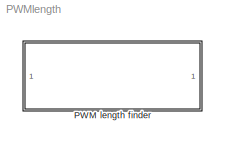
MODEL PWMlength
KIND model
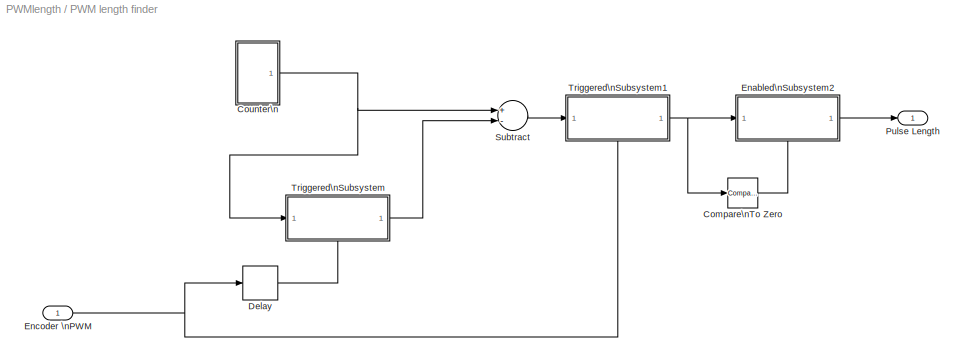
BLOCK [SubSystem] PWM length finder
  Ports = [1, 1]
  RequestExecContextInheritance = off
  SID = 16
  Variant = off
BLOCK [Reference] PWM length finder/Compare\nTo Zero  REF=simulink/Logic and Bit\nOperations/Compare\nTo Zero
  OutDataTypeStr = boolean
  Ports = [1, 1]
  SID = 42
  SourceBlock = simulink/Logic and Bit\nOperations/Compare\nTo Zero
  SourceType = Compare To Zero
  ZeroCross = on
  relop = ~=
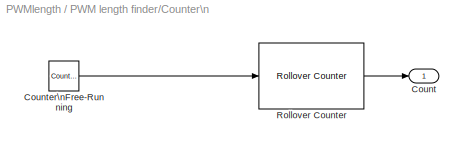
BLOCK [SubSystem] PWM length finder/Counter\n
  Ports = [0, 1]
  RequestExecContextInheritance = off
  SID = 19
  Variant = off
BLOCK [Outport] PWM length finder/Counter\n/Count
  IconDisplay = Port number
  SID = 20
BLOCK [Reference] PWM length finder/Counter\n/Counter\nFree-Running  REF=simulink/Sources/Counter\nFree-Running
  NumBits = 16
  Ports = [0, 1]
  SID = 5
  SourceBlock = simulink/Sources/Counter\nFree-Running
  SourceType = Counter Free-Running
  tsamp = 0.001
BLOCK [Reference] PWM length finder/Counter\n/Rollover Counter   REF=slrtlib/Incremental\nEncoder/Utilities/Rollover/Rollover Counter 
  InitialValue = 0
  Ports = [1, 1]
  RolloverThreshold = 2^15
  SID = 8
  SourceBlock = slrtlib/Incremental\nEncoder/Utilities/Rollover/Rollover Counter
  SourceType = RolloverCounter
BLOCK [Delay] PWM length finder/Delay
  DelayLength = 1
  InitialCondition = 0
  InputPortMap = u0
  Ports = [1, 1]
  SID = 38
  SampleTime = 0.00001
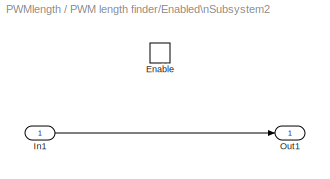
BLOCK [SubSystem] PWM length finder/Enabled\nSubsystem2
  Ports = [1, 1, 1]
  RequestExecContextInheritance = off
  SID = 43
  TreatAsAtomicUnit = on
  Variant = off
BLOCK [EnablePort] PWM length finder/Enabled\nSubsystem2/Enable
  Ports = []
  SID = 45
BLOCK [Inport] PWM length finder/Enabled\nSubsystem2/In1
  IconDisplay = Port number
  SID = 44
BLOCK [Outport] PWM length finder/Enabled\nSubsystem2/Out1
  IconDisplay = Port number
  SID = 46
BLOCK [Inport] PWM length finder/Encoder \nPWM
  IconDisplay = Port number
  SID = 66
BLOCK [Outport] PWM length finder/Pulse Length
  IconDisplay = Port number
  SID = 17
BLOCK [Sum] PWM length finder/Subtract
  InputSameDT = off
  Inputs = +-
  OutDataTypeStr = Inherit: Inherit via internal rule
  Ports = [2, 1]
  SID = 10
  SaturateOnIntegerOverflow = off
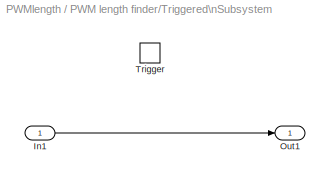
BLOCK [SubSystem] PWM length finder/Triggered\nSubsystem
  Ports = [1, 1, 0, 1]
  RequestExecContextInheritance = off
  SID = 53
  TreatAsAtomicUnit = on
  Variant = off
BLOCK [Inport] PWM length finder/Triggered\nSubsystem/In1
  IconDisplay = Port number
  SID = 54
BLOCK [Outport] PWM length finder/Triggered\nSubsystem/Out1
  IconDisplay = Port number
  SID = 56
BLOCK [TriggerPort] PWM length finder/Triggered\nSubsystem/Trigger
  Ports = []
  SID = 55
  StatesWhenEnabling = held
  VariantControl = Variant
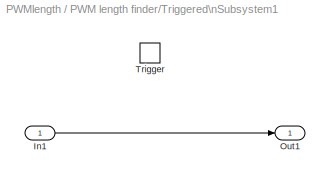
BLOCK [SubSystem] PWM length finder/Triggered\nSubsystem1
  Ports = [1, 1, 0, 1]
  RequestExecContextInheritance = off
  SID = 62
  TreatAsAtomicUnit = on
  Variant = off
BLOCK [Inport] PWM length finder/Triggered\nSubsystem1/In1
  IconDisplay = Port number
  SID = 63
BLOCK [Outport] PWM length finder/Triggered\nSubsystem1/Out1
  IconDisplay = Port number
  SID = 65
BLOCK [TriggerPort] PWM length finder/Triggered\nSubsystem1/Trigger
  Ports = []
  SID = 64
  StatesWhenEnabling = held
  VariantControl = Variant
LINE PWM length finder/Compare\nTo Zero:1 -> PWM length finder/Enabled\nSubsystem2:enable
LINE PWM length finder/Counter\n/Counter\nFree-Running:1 -> PWM length finder/Counter\n/Rollover Counter :1
LINE PWM length finder/Counter\n/Rollover Counter :1 -> PWM length finder/Counter\n/Count:1
NET PWM length finder/Counter\n:1 -> PWM length finder/Subtract:1, PWM length finder/Triggered\nSubsystem:1
LINE PWM length finder/Delay:1 -> PWM length finder/Triggered\nSubsystem:trigger
LINE PWM length finder/Enabled\nSubsystem2/In1:1 -> PWM length finder/Enabled\nSubsystem2/Out1:1
LINE PWM length finder/Enabled\nSubsystem2:1 -> PWM length finder/Pulse Length:1
NET PWM length finder/Encoder \nPWM:1 -> PWM length finder/Delay:1, PWM length finder/Triggered\nSubsystem1:trigger
LINE PWM length finder/Subtract:1 -> PWM length finder/Triggered\nSubsystem1:1
LINE PWM length finder/Triggered\nSubsystem/In1:1 -> PWM length finder/Triggered\nSubsystem/Out1:1
LINE PWM length finder/Triggered\nSubsystem1/In1:1 -> PWM length finder/Triggered\nSubsystem1/Out1:1
NET PWM length finder/Triggered\nSubsystem1:1 -> PWM length finder/Compare\nTo Zero:1, PWM length finder/Enabled\nSubsystem2:1
LINE PWM length finder/Triggered\nSubsystem:1 -> PWM length finder/Subtract:2
note: NET lines group one-source signal fan-out (src -> all destinations, sorted); 1:1 wires keep LINE
